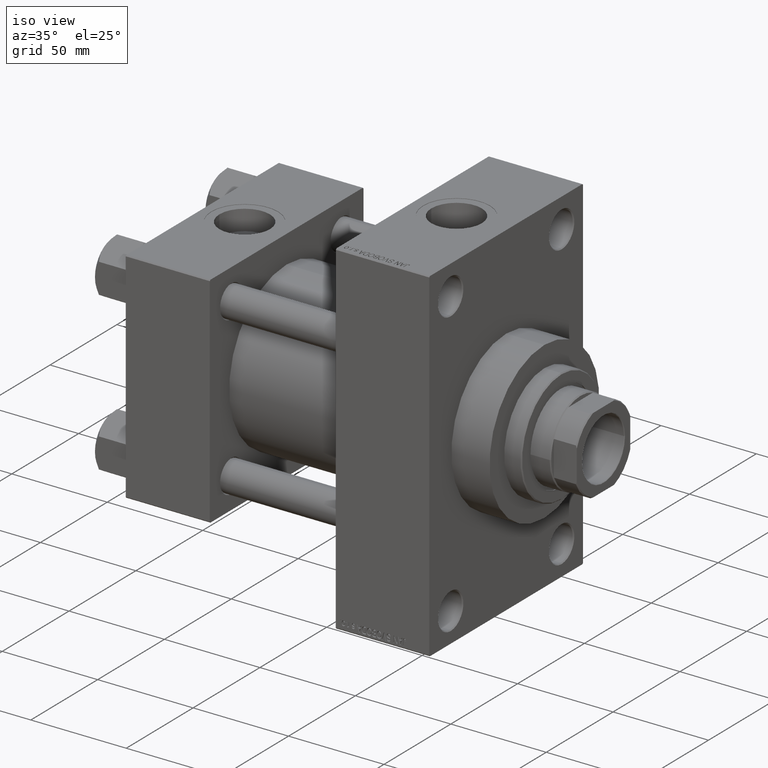
[diagram: clean part render]
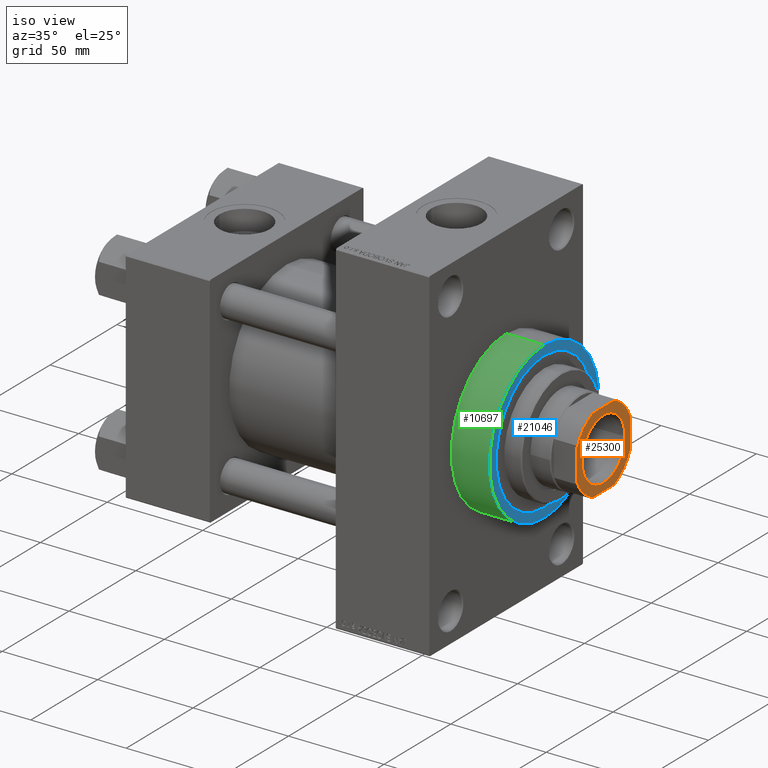
[diagram: same view with three faces highlighted in distinct colors, each labeled with its STEP entity id]
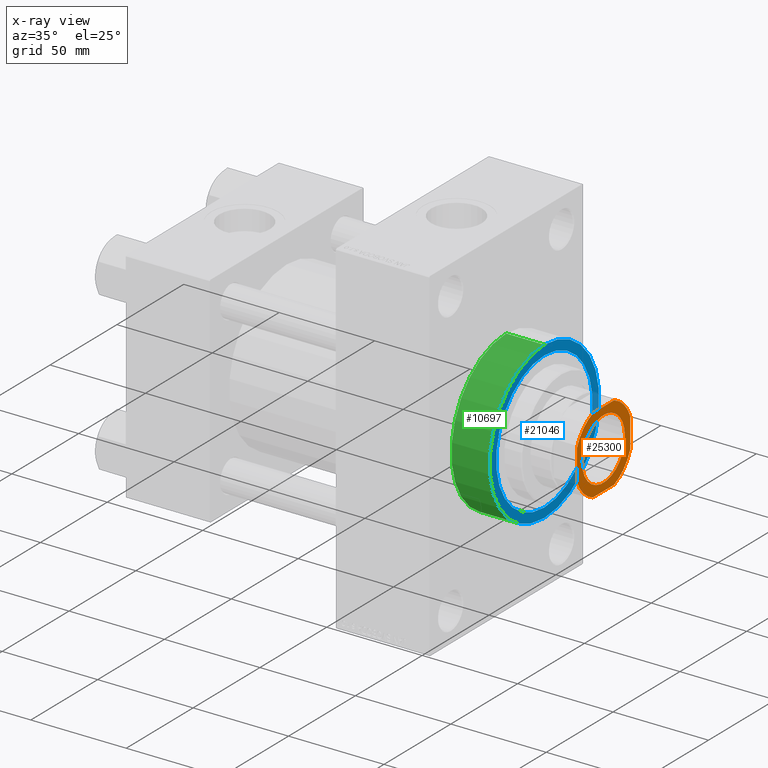
[diagram: x-ray of the same camera — body ghosted, the three highlighted faces saturated]
A machine part, iso view with three faces highlighted in distinct colors.
The next image is the same camera in x-ray (body ghosted, the three faces saturated) — at least one of them is partly hidden behind the body in this view.
Their STEP definitions:

[orange] entity #25300 — the highlighted planar face has unit normal (1, 0, 0).
#591 = DIRECTION ( 'NONE',  ( -8.673617379884035472E-17, 1.000000000000000000, -0.000000000000000000 ) ) ;
#701 = ORIENTED_EDGE ( 'NONE', *, *, #17604, .T. ) ;
#741 = EDGE_CURVE ( 'NONE', #11409, #29999, #29550, .T. ) ;
#1057 = DIRECTION ( 'NONE',  ( -0.000000000000000000, 0.000000000000000000, 1.000000000000000000 ) ) ;
#1173 = ORIENTED_EDGE ( 'NONE', *, *, #41426, .T. ) ;
#1573 = LINE ( 'NONE', #5420, #4656 ) ;
#2240 = CARTESIAN_POINT ( 'NONE',  ( 0.000000000000000000, 0.000000000000000000, 166.0000000000000000 ) ) ;
#2248 = DIRECTION ( 'NONE',  ( 1.000000000000000000, 0.000000000000000000, 0.000000000000000000 ) ) ;
#4415 = CARTESIAN_POINT ( 'NONE',  ( -20.00000000000000000, -19.99999999999999645, 166.0000000000000000 ) ) ;
#4656 = VECTOR ( 'NONE', #38248, 1000.000000000000000 ) ;
#5420 = CARTESIAN_POINT ( 'NONE',  ( -20.00000000000000711, 20.00000000000000355, 166.0000000000000000 ) ) ;
#5560 = VERTEX_POINT ( 'NONE', #32771 ) ;
#5869 = FACE_OUTER_BOUND ( 'NONE', #39422, .T. ) ;
#6186 = CARTESIAN_POINT ( 'NONE',  ( 7.889866919030009029, -19.99999999999999645, 166.0000000000000000 ) ) ;
#6717 = VERTEX_POINT ( 'NONE', #6186 ) ;
#8972 = EDGE_CURVE ( 'NONE', #6717, #30825, #43685, .T. ) ;
#9966 = CARTESIAN_POINT ( 'NONE',  ( 0.000000000000000000, 0.000000000000000000, 166.0000000000000000 ) ) ;
#10022 = AXIS2_PLACEMENT_3D ( 'NONE', #38004, #38715, #16265 ) ;
#11409 = VERTEX_POINT ( 'NONE', #42324 ) ;
#12118 = VECTOR ( 'NONE', #591, 1000.000000000000000 ) ;
#12276 = EDGE_CURVE ( 'NONE', #30825, #26126, #43751, .T. ) ;
#12336 = AXIS2_PLACEMENT_3D ( 'NONE', #44931, #1057, #43968 ) ;
#13133 = CIRCLE ( 'NONE', #12336, 21.50000000000009237 ) ;
#13303 = AXIS2_PLACEMENT_3D ( 'NONE', #34339, #15991, #23714 ) ;
#14922 = DIRECTION ( 'NONE',  ( 1.000000000000000000, 0.000000000000000000, 0.000000000000000000 ) ) ;
#15109 = CARTESIAN_POINT ( 'NONE',  ( 16.05000000000000782, 0.000000000000000000, 166.0000000000000000 ) ) ;
#15425 = EDGE_CURVE ( 'NONE', #5560, #11409, #45981, .T. ) ;
#15621 = AXIS2_PLACEMENT_3D ( 'NONE', #47309, #20590, #2248 ) ;
#15991 = DIRECTION ( 'NONE',  ( 0.000000000000000000, -0.000000000000000000, -1.000000000000000000 ) ) ;
#16199 = LINE ( 'NONE', #4415, #37090 ) ;
#16265 = DIRECTION ( 'NONE',  ( 1.000000000000000000, 0.000000000000000000, 0.000000000000000000 ) ) ;
#16353 = EDGE_CURVE ( 'NONE', #24281, #5560, #36227, .T. ) ;
#16384 = EDGE_CURVE ( 'NONE', #47423, #24281, #1573, .T. ) ;
#16718 = EDGE_CURVE ( 'NONE', #26126, #47423, #13133, .T. ) ;
#17580 = VECTOR ( 'NONE', #42834, 1000.000000000000000 ) ;
#17604 = EDGE_CURVE ( 'NONE', #30209, #47417, #30099, .T. ) ;
#18534 = ORIENTED_EDGE ( 'NONE', *, *, #8972, .T. ) ;
#19602 = DIRECTION ( 'NONE',  ( 1.000000000000000000, 0.000000000000000000, 0.000000000000000000 ) ) ;
#20590 = DIRECTION ( 'NONE',  ( -0.000000000000000000, 0.000000000000000000, 1.000000000000000000 ) ) ;
#21545 = DIRECTION ( 'NONE',  ( 1.000000000000000000, 0.000000000000000000, 0.000000000000000000 ) ) ;
#22628 = AXIS2_PLACEMENT_3D ( 'NONE', #9966, #28780, #21545 ) ;
#23714 = DIRECTION ( 'NONE',  ( 1.000000000000000000, 0.000000000000000000, 0.000000000000000000 ) ) ;
#24238 = ORIENTED_EDGE ( 'NONE', *, *, #741, .T. ) ;
#24281 = VERTEX_POINT ( 'NONE', #28847 ) ;
#24520 = ORIENTED_EDGE ( 'NONE', *, *, #28723, .T. ) ;
#25300 = ADVANCED_FACE ( 'NONE', ( #35518, #5869 ), #35295, .T. ) ;
#25319 = ORIENTED_EDGE ( 'NONE', *, *, #16384, .T. ) ;
#26126 = VERTEX_POINT ( 'NONE', #26155 ) ;
#26155 = CARTESIAN_POINT ( 'NONE',  ( 20.00000000000000000, 7.889866919030000147, 166.0000000000000000 ) ) ;
#26327 = CARTESIAN_POINT ( 'NONE',  ( 20.00000000000000000, -7.889866919030000147, 166.0000000000000000 ) ) ;
#26426 = EDGE_LOOP ( 'NONE', ( #701, #1173 ) ) ;
#26681 = CARTESIAN_POINT ( 'NONE',  ( -16.05000000000000782, 1.965558112631502993E-15, 166.0000000000000000 ) ) ;
#28723 = EDGE_CURVE ( 'NONE', #29999, #6717, #16199, .T. ) ;
#28780 = DIRECTION ( 'NONE',  ( -0.000000000000000000, 0.000000000000000000, 1.000000000000000000 ) ) ;
#28847 = CARTESIAN_POINT ( 'NONE',  ( -7.889866919029987713, 20.00000000000000355, 166.0000000000000000 ) ) ;
#29304 = AXIS2_PLACEMENT_3D ( 'NONE', #2240, #38436, #45901 ) ;
#29397 = CARTESIAN_POINT ( 'NONE',  ( 0.000000000000000000, 0.000000000000000000, 166.0000000000000000 ) ) ;
#29550 = CIRCLE ( 'NONE', #22628, 21.50000000000004974 ) ;
#29876 = ORIENTED_EDGE ( 'NONE', *, *, #16353, .T. ) ;
#29999 = VERTEX_POINT ( 'NONE', #37410 ) ;
#30099 = CIRCLE ( 'NONE', #29304, 16.05000000000000782 ) ;
#30209 = VERTEX_POINT ( 'NONE', #15109 ) ;
#30304 = CARTESIAN_POINT ( 'NONE',  ( 7.889866919029989489, 20.00000000000000355, 166.0000000000000000 ) ) ;
#30825 = VERTEX_POINT ( 'NONE', #26327 ) ;
#31383 = AXIS2_PLACEMENT_3D ( 'NONE', #29397, #44105, #14922 ) ;
#32771 = CARTESIAN_POINT ( 'NONE',  ( -20.00000000000000355, 7.889866919029985048, 166.0000000000000000 ) ) ;
#33004 = ORIENTED_EDGE ( 'NONE', *, *, #16718, .T. ) ;
#34105 = CIRCLE ( 'NONE', #13303, 16.05000000000000782 ) ;
#34339 = CARTESIAN_POINT ( 'NONE',  ( 0.000000000000000000, 0.000000000000000000, 166.0000000000000000 ) ) ;
#35295 = PLANE ( 'NONE',  #15621 ) ;
#35518 = FACE_BOUND ( 'NONE', #26426, .T. ) ;
#36227 = CIRCLE ( 'NONE', #10022, 21.50000000000009237 ) ;
#36761 = CARTESIAN_POINT ( 'NONE',  ( 19.99999999999999645, 20.00000000000000355, 166.0000000000000000 ) ) ;
#37090 = VECTOR ( 'NONE', #19602, 1000.000000000000000 ) ;
#37410 = CARTESIAN_POINT ( 'NONE',  ( -7.889866919029896231, -19.99999999999999645, 166.0000000000000000 ) ) ;
#38004 = CARTESIAN_POINT ( 'NONE',  ( 0.000000000000000000, 0.000000000000000000, 166.0000000000000000 ) ) ;
#38248 = DIRECTION ( 'NONE',  ( -1.000000000000000000, -0.000000000000000000, -0.000000000000000000 ) ) ;
#38436 = DIRECTION ( 'NONE',  ( 0.000000000000000000, -0.000000000000000000, -1.000000000000000000 ) ) ;
#38715 = DIRECTION ( 'NONE',  ( -0.000000000000000000, 0.000000000000000000, 1.000000000000000000 ) ) ;
#39422 = EDGE_LOOP ( 'NONE', ( #42035, #33004, #25319, #29876, #46997, #24238, #24520, #18534 ) ) ;
#41426 = EDGE_CURVE ( 'NONE', #47417, #30209, #34105, .T. ) ;
#42035 = ORIENTED_EDGE ( 'NONE', *, *, #12276, .T. ) ;
#42324 = CARTESIAN_POINT ( 'NONE',  ( -20.00000000000000355, -7.889866919029878467, 166.0000000000000000 ) ) ;
#42834 = DIRECTION ( 'NONE',  ( 1.734723475976807094E-16, -1.000000000000000000, 0.000000000000000000 ) ) ;
#43685 = CIRCLE ( 'NONE', #31383, 21.50000000000009237 ) ;
#43751 = LINE ( 'NONE', #36761, #12118 ) ;
#43968 = DIRECTION ( 'NONE',  ( 1.000000000000000000, 0.000000000000000000, 0.000000000000000000 ) ) ;
#44105 = DIRECTION ( 'NONE',  ( -0.000000000000000000, 0.000000000000000000, 1.000000000000000000 ) ) ;
#44931 = CARTESIAN_POINT ( 'NONE',  ( 0.000000000000000000, 0.000000000000000000, 166.0000000000000000 ) ) ;
#45901 = DIRECTION ( 'NONE',  ( 1.000000000000000000, 0.000000000000000000, 0.000000000000000000 ) ) ;
#45981 = LINE ( 'NONE', #46445, #17580 ) ;
#46445 = CARTESIAN_POINT ( 'NONE',  ( -20.00000000000000711, 20.00000000000000355, 166.0000000000000000 ) ) ;
#46997 = ORIENTED_EDGE ( 'NONE', *, *, #15425, .T. ) ;
#47309 = CARTESIAN_POINT ( 'NONE',  ( 0.000000000000000000, 0.000000000000000000, 166.0000000000000000 ) ) ;
#47417 = VERTEX_POINT ( 'NONE', #26681 ) ;
#47423 = VERTEX_POINT ( 'NONE', #30304 ) ;

[blue] entity #21046 — the highlighted planar face has unit normal (1, 0, 0).
#3768 = CARTESIAN_POINT ( 'NONE',  ( 179.0000000000000000, 0.000000000000000000, -36.00000000000000000 ) ) ;
#4219 = DIRECTION ( 'NONE',  ( 1.000000000000000000, 0.000000000000000000, 0.000000000000000000 ) ) ;
#5744 = CARTESIAN_POINT ( 'NONE',  ( 179.0000000000000000, 0.000000000000000000, 0.000000000000000000 ) ) ;
#5968 = DIRECTION ( 'NONE',  ( 0.000000000000000000, 0.000000000000000000, -1.000000000000000000 ) ) ;
#7357 = DIRECTION ( 'NONE',  ( 0.000000000000000000, 0.000000000000000000, -1.000000000000000000 ) ) ;
#8565 = DIRECTION ( 'NONE',  ( 1.000000000000000000, 0.000000000000000000, 0.000000000000000000 ) ) ;
#9523 = DIRECTION ( 'NONE',  ( 0.000000000000000000, 0.000000000000000000, -1.000000000000000000 ) ) ;
#10280 = CARTESIAN_POINT ( 'NONE',  ( 179.0000000000000000, 0.000000000000000000, 0.000000000000000000 ) ) ;
#10460 = EDGE_LOOP ( 'NONE', ( #14029, #27312 ) ) ;
#10658 = ORIENTED_EDGE ( 'NONE', *, *, #18311, .T. ) ;
#13561 = ORIENTED_EDGE ( 'NONE', *, *, #43903, .T. ) ;
#14029 = ORIENTED_EDGE ( 'NONE', *, *, #16467, .F. ) ;
#14836 = AXIS2_PLACEMENT_3D ( 'NONE', #39249, #27926, #5968 ) ;
#14840 = DIRECTION ( 'NONE',  ( 0.000000000000000000, 0.000000000000000000, -1.000000000000000000 ) ) ;
#15300 = CARTESIAN_POINT ( 'NONE',  ( 179.0000000000000000, 0.000000000000000000, 0.000000000000000000 ) ) ;
#16467 = EDGE_CURVE ( 'NONE', #46708, #34852, #41599, .T. ) ;
#18311 = EDGE_CURVE ( 'NONE', #44093, #19143, #33193, .T. ) ;
#19143 = VERTEX_POINT ( 'NONE', #37513 ) ;
#21046 = ADVANCED_FACE ( 'NONE', ( #42859, #27687 ), #46475, .T. ) ;
#22416 = AXIS2_PLACEMENT_3D ( 'NONE', #5744, #46491, #31793 ) ;
#22637 = AXIS2_PLACEMENT_3D ( 'NONE', #10280, #29317, #14840 ) ;
#25567 = CARTESIAN_POINT ( 'NONE',  ( 179.0000000000000000, 4.408728476930470856E-15, 36.00000000000000000 ) ) ;
#27312 = ORIENTED_EDGE ( 'NONE', *, *, #41749, .F. ) ;
#27687 = FACE_OUTER_BOUND ( 'NONE', #28218, .T. ) ;
#27926 = DIRECTION ( 'NONE',  ( 1.000000000000000000, 0.000000000000000000, 0.000000000000000000 ) ) ;
#28102 = CARTESIAN_POINT ( 'NONE',  ( 179.0000000000000000, 0.000000000000000000, 0.000000000000000000 ) ) ;
#28218 = EDGE_LOOP ( 'NONE', ( #13561, #10658 ) ) ;
#29317 = DIRECTION ( 'NONE',  ( 1.000000000000000000, 0.000000000000000000, 0.000000000000000000 ) ) ;
#29482 = CIRCLE ( 'NONE', #34901, 36.00000000000000000 ) ;
#31619 = AXIS2_PLACEMENT_3D ( 'NONE', #28102, #8565, #9523 ) ;
#31793 = DIRECTION ( 'NONE',  ( 0.000000000000000000, 0.000000000000000000, -1.000000000000000000 ) ) ;
#33193 = CIRCLE ( 'NONE', #22416, 41.00000000000000000 ) ;
#34852 = VERTEX_POINT ( 'NONE', #25567 ) ;
#34901 = AXIS2_PLACEMENT_3D ( 'NONE', #15300, #4219, #7357 ) ;
#37513 = CARTESIAN_POINT ( 'NONE',  ( 179.0000000000000000, 0.000000000000000000, 41.00000000000000000 ) ) ;
#39249 = CARTESIAN_POINT ( 'NONE',  ( 179.0000000000000000, 0.000000000000000000, 0.000000000000000000 ) ) ;
#41599 = CIRCLE ( 'NONE', #31619, 36.00000000000000000 ) ;
#41749 = EDGE_CURVE ( 'NONE', #34852, #46708, #29482, .T. ) ;
#42269 = CARTESIAN_POINT ( 'NONE',  ( 179.0000000000000000, 5.021051876504148963E-15, -41.00000000000000000 ) ) ;
#42668 = CIRCLE ( 'NONE', #22637, 41.00000000000000000 ) ;
#42859 = FACE_BOUND ( 'NONE', #10460, .T. ) ;
#43903 = EDGE_CURVE ( 'NONE', #19143, #44093, #42668, .T. ) ;
#44093 = VERTEX_POINT ( 'NONE', #42269 ) ;
#46475 = PLANE ( 'NONE',  #14836 ) ;
#46491 = DIRECTION ( 'NONE',  ( 1.000000000000000000, 0.000000000000000000, 0.000000000000000000 ) ) ;
#46708 = VERTEX_POINT ( 'NONE', #3768 ) ;

[green] entity #10697 — the highlighted cylindrical surface (partial cylindrical patch) has radius 41 mm, axis along (-1, -0, -0).
#2116 = LINE ( 'NONE', #20914, #6542 ) ;
#2447 = CARTESIAN_POINT ( 'NONE',  ( 179.0000000000000000, 0.000000000000000000, 0.000000000000000000 ) ) ;
#3645 = DIRECTION ( 'NONE',  ( 0.000000000000000000, 0.000000000000000000, -1.000000000000000000 ) ) ;
#5679 = CARTESIAN_POINT ( 'NONE',  ( 159.0000000000000000, 0.000000000000000000, 41.00000000000000000 ) ) ;
#6376 = DIRECTION ( 'NONE',  ( -1.000000000000000000, -0.000000000000000000, -0.000000000000000000 ) ) ;
#6542 = VECTOR ( 'NONE', #38778, 1000.000000000000000 ) ;
#6788 = DIRECTION ( 'NONE',  ( 1.000000000000000000, 0.000000000000000000, 0.000000000000000000 ) ) ;
#6850 = LINE ( 'NONE', #21809, #23528 ) ;
#10280 = CARTESIAN_POINT ( 'NONE',  ( 179.0000000000000000, 0.000000000000000000, 0.000000000000000000 ) ) ;
#10697 = ADVANCED_FACE ( 'NONE', ( #21030 ), #23700, .T. ) ;
#14840 = DIRECTION ( 'NONE',  ( 0.000000000000000000, 0.000000000000000000, -1.000000000000000000 ) ) ;
#16454 = DIRECTION ( 'NONE',  ( 0.000000000000000000, 0.000000000000000000, 1.000000000000000000 ) ) ;
#18837 = CARTESIAN_POINT ( 'NONE',  ( 159.0000000000000000, 0.000000000000000000, 0.000000000000000000 ) ) ;
#19143 = VERTEX_POINT ( 'NONE', #37513 ) ;
#20914 = CARTESIAN_POINT ( 'NONE',  ( 179.0000000000000000, 0.000000000000000000, 41.00000000000000000 ) ) ;
#21030 = FACE_OUTER_BOUND ( 'NONE', #45409, .T. ) ;
#21809 = CARTESIAN_POINT ( 'NONE',  ( 179.0000000000000000, 5.021051876504148963E-15, -41.00000000000000000 ) ) ;
#22637 = AXIS2_PLACEMENT_3D ( 'NONE', #10280, #29317, #14840 ) ;
#23528 = VECTOR ( 'NONE', #6376, 1000.000000000000000 ) ;
#23700 = CYLINDRICAL_SURFACE ( 'NONE', #39122, 41.00000000000000000 ) ;
#26117 = ORIENTED_EDGE ( 'NONE', *, *, #46581, .T. ) ;
#26561 = AXIS2_PLACEMENT_3D ( 'NONE', #18837, #6788, #3645 ) ;
#27597 = CARTESIAN_POINT ( 'NONE',  ( 159.0000000000000000, 5.021051876504148963E-15, -41.00000000000000000 ) ) ;
#29317 = DIRECTION ( 'NONE',  ( 1.000000000000000000, 0.000000000000000000, 0.000000000000000000 ) ) ;
#33813 = ORIENTED_EDGE ( 'NONE', *, *, #46139, .T. ) ;
#36513 = VERTEX_POINT ( 'NONE', #5679 ) ;
#37513 = CARTESIAN_POINT ( 'NONE',  ( 179.0000000000000000, 0.000000000000000000, 41.00000000000000000 ) ) ;
#37752 = VERTEX_POINT ( 'NONE', #27597 ) ;
#38778 = DIRECTION ( 'NONE',  ( -1.000000000000000000, -0.000000000000000000, -0.000000000000000000 ) ) ;
#39122 = AXIS2_PLACEMENT_3D ( 'NONE', #2447, #46115, #16454 ) ;
#39134 = ORIENTED_EDGE ( 'NONE', *, *, #46983, .F. ) ;
#42269 = CARTESIAN_POINT ( 'NONE',  ( 179.0000000000000000, 5.021051876504148963E-15, -41.00000000000000000 ) ) ;
#42620 = ORIENTED_EDGE ( 'NONE', *, *, #43903, .F. ) ;
#42668 = CIRCLE ( 'NONE', #22637, 41.00000000000000000 ) ;
#43903 = EDGE_CURVE ( 'NONE', #19143, #44093, #42668, .T. ) ;
#44093 = VERTEX_POINT ( 'NONE', #42269 ) ;
#45409 = EDGE_LOOP ( 'NONE', ( #39134, #42620, #26117, #33813 ) ) ;
#45801 = CIRCLE ( 'NONE', #26561, 41.00000000000000000 ) ;
#46115 = DIRECTION ( 'NONE',  ( -1.000000000000000000, -0.000000000000000000, -0.000000000000000000 ) ) ;
#46139 = EDGE_CURVE ( 'NONE', #36513, #37752, #45801, .T. ) ;
#46581 = EDGE_CURVE ( 'NONE', #19143, #36513, #2116, .T. ) ;
#46983 = EDGE_CURVE ( 'NONE', #44093, #37752, #6850, .T. ) ;